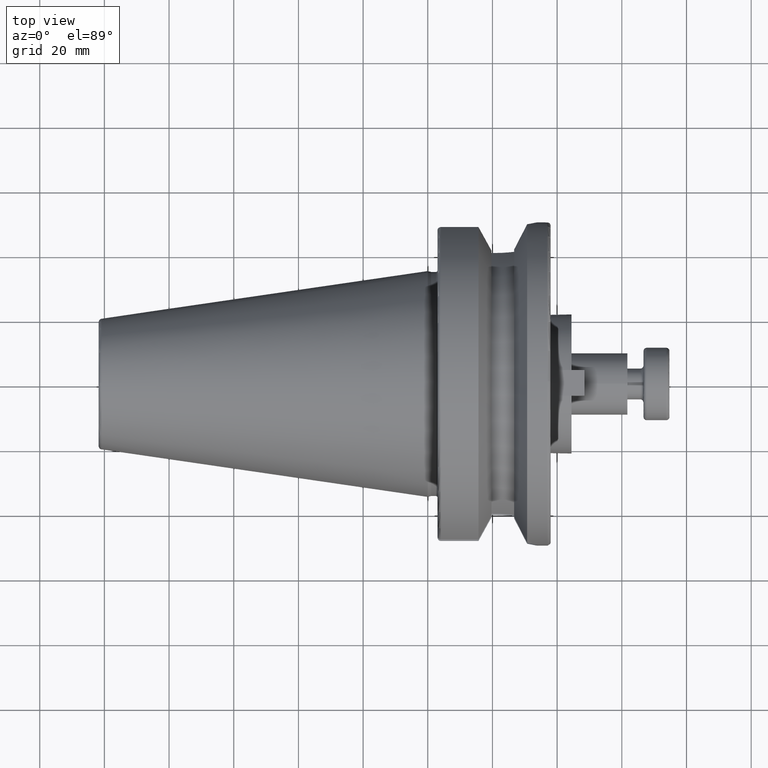
[diagram: clean part render]
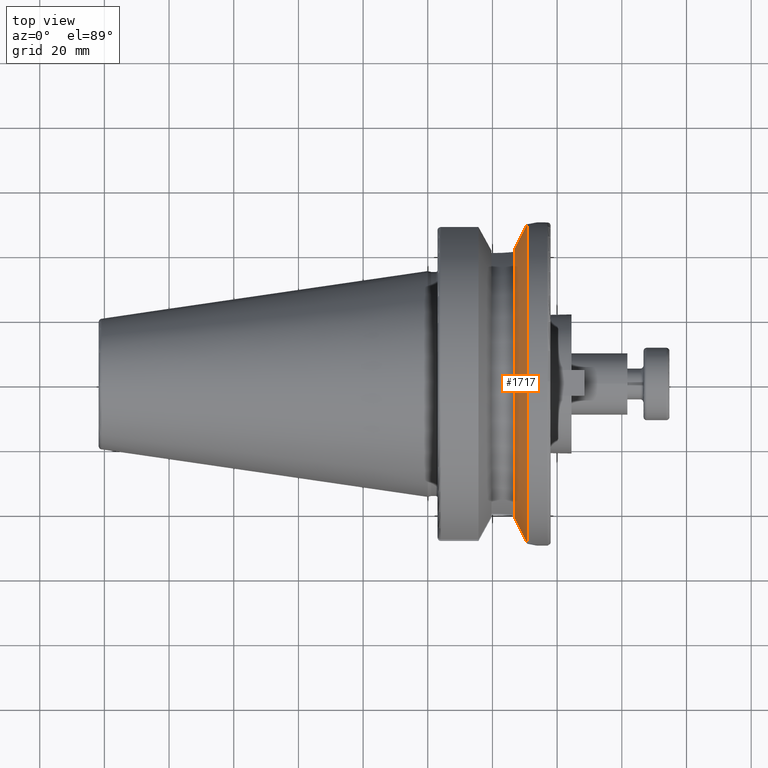
[diagram: same view with one face highlighted and labeled with its STEP entity id]
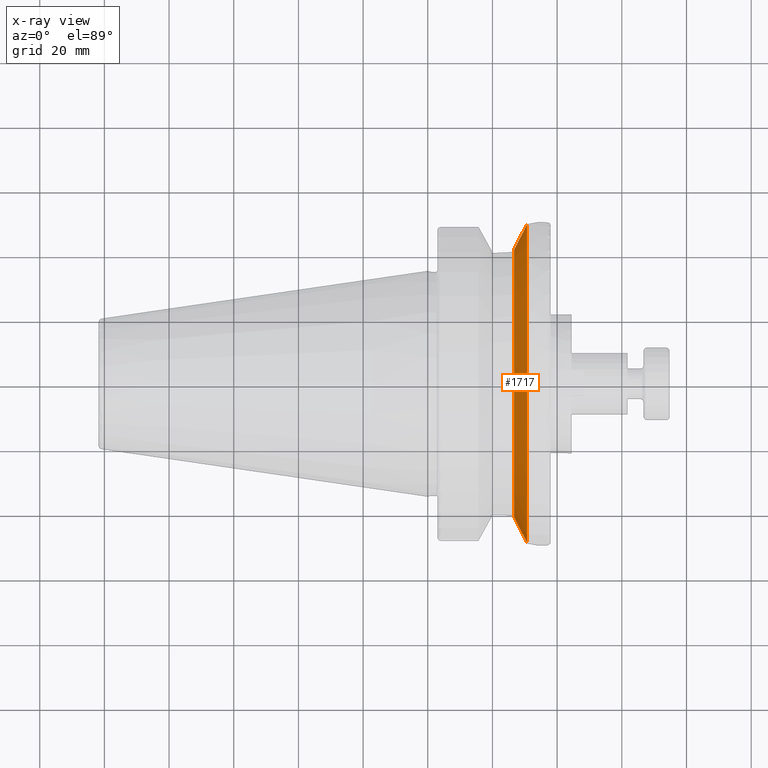
[diagram: x-ray of the same camera — body ghosted, the highlighted face saturated]
A machine part, top view. The second image highlights one B-rep face of the part: STEP entity #1717.
The next image is the same camera in x-ray: the body ghosted, the highlighted face saturated — about 0% of this face is hidden behind the body in this view.
In plain terms, the highlighted conical surface has half-angle 60.125 deg.
Its self-contained STEP definition (entity closure, byte-faithful):
#79=B_SPLINE_CURVE_WITH_KNOTS('',3,(#2801,#2802,#2803,#2804,#2805,#2806),
 .UNSPECIFIED.,.F.,.F.,(4,2,4),(1.70597184072793,2.24802424732131,2.60708937353861),
 .UNSPECIFIED.);
#88=B_SPLINE_CURVE_WITH_KNOTS('',3,(#2960,#2961,#2962,#2963,#2964,#2965),
 .UNSPECIFIED.,.F.,.F.,(4,2,4),(4.84387686434585,5.20294199056316,5.74499439715654),
 .UNSPECIFIED.);
#122=CONICAL_SURFACE('',#1961,46.4904524201025,1.04937921276159);
#173=CIRCLE('',#1940,50.);
#183=CIRCLE('',#1962,42.9809048402051);
#287=FACE_OUTER_BOUND('',#397,.T.);
#397=EDGE_LOOP('',(#1325,#1326,#1327,#1328));
#754=VERTEX_POINT('',#2793);
#755=VERTEX_POINT('',#2800);
#775=VERTEX_POINT('',#2880);
#788=VERTEX_POINT('',#2958);
#934=EDGE_CURVE('',#755,#754,#79,.T.);
#959=EDGE_CURVE('',#775,#754,#173,.T.);
#981=EDGE_CURVE('',#775,#788,#88,.T.);
#992=EDGE_CURVE('',#788,#755,#183,.T.);
#1325=ORIENTED_EDGE('',*,*,#934,.T.);
#1326=ORIENTED_EDGE('',*,*,#959,.F.);
#1327=ORIENTED_EDGE('',*,*,#981,.T.);
#1328=ORIENTED_EDGE('',*,*,#992,.T.);
#1717=ADVANCED_FACE('',(#287),#122,.T.);
#1940=AXIS2_PLACEMENT_3D('',#2891,#2255,#2256);
#1961=AXIS2_PLACEMENT_3D('',#2997,#2312,#2313);
#1962=AXIS2_PLACEMENT_3D('',#2998,#2314,#2315);
#2255=DIRECTION('center_axis',(1.,0.,0.));
#2256=DIRECTION('ref_axis',(0.,0.,-1.));
#2312=DIRECTION('center_axis',(1.,0.,0.));
#2313=DIRECTION('ref_axis',(0.,1.,0.));
#2314=DIRECTION('center_axis',(1.,0.,0.));
#2315=DIRECTION('ref_axis',(0.,0.,-1.));
#2793=CARTESIAN_POINT('',(30.732084412946,-49.2614843635149,8.56190155883473));
#2800=CARTESIAN_POINT('',(26.7,-41.388865421545,11.5896505555603));
#2801=CARTESIAN_POINT('Ctrl Pts',(26.7,-41.388865421545,11.5896505555603));
#2802=CARTESIAN_POINT('Ctrl Pts',(27.5575735603595,-43.0541580056802,11.1789795661998));
#2803=CARTESIAN_POINT('Ctrl Pts',(28.3833872619345,-44.664615633924,10.6667071522788));
#2804=CARTESIAN_POINT('Ctrl Pts',(29.6692681874855,-47.1784655131599,9.64228850610742));
#2805=CARTESIAN_POINT('Ctrl Pts',(30.2082188762695,-48.2339624041648,9.14818764948576));
#2806=CARTESIAN_POINT('Ctrl Pts',(30.732084412946,-49.2614843635149,8.56190155883473));
#2880=CARTESIAN_POINT('',(30.732084412946,49.2614843635149,8.56190155883473));
#2891=CARTESIAN_POINT('Origin',(30.732084412946,0.,0.));
#2958=CARTESIAN_POINT('',(26.7,41.388865421545,11.5896505555603));
#2960=CARTESIAN_POINT('Ctrl Pts',(30.732084412946,49.2614843635149,8.56190155883472));
#2961=CARTESIAN_POINT('Ctrl Pts',(30.2082188762695,48.2339624041648,9.14818764948575));
#2962=CARTESIAN_POINT('Ctrl Pts',(29.6692681874855,47.1784655131599,9.64228850610742));
#2963=CARTESIAN_POINT('Ctrl Pts',(28.3833872619345,44.664615633924,10.6667071522788));
#2964=CARTESIAN_POINT('Ctrl Pts',(27.5575735603595,43.0541580056802,11.1789795661998));
#2965=CARTESIAN_POINT('Ctrl Pts',(26.7,41.388865421545,11.5896505555603));
#2997=CARTESIAN_POINT('Origin',(28.716042206473,0.,0.));
#2998=CARTESIAN_POINT('Origin',(26.7,0.,0.));